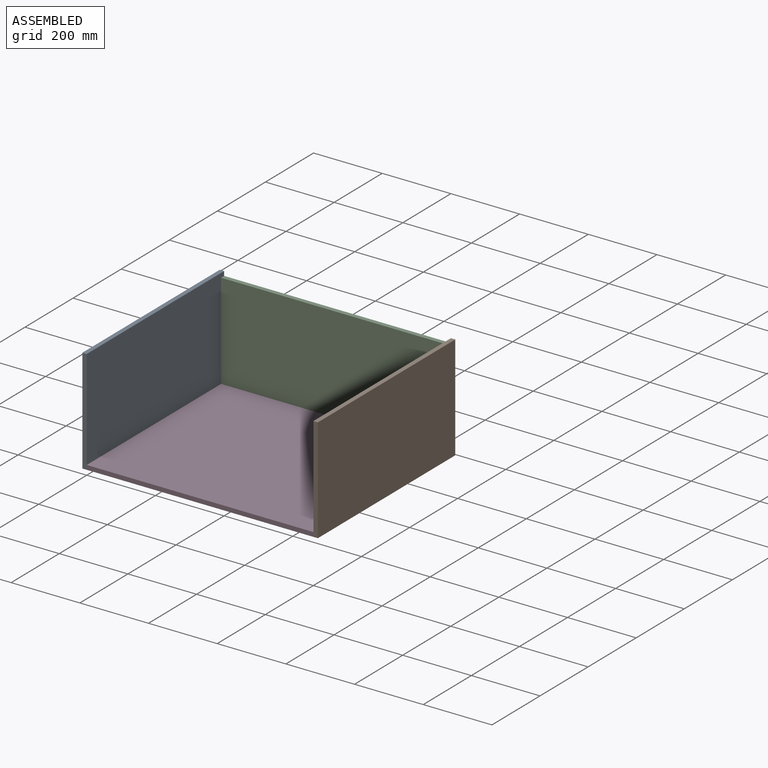
[diagram: assembled view]
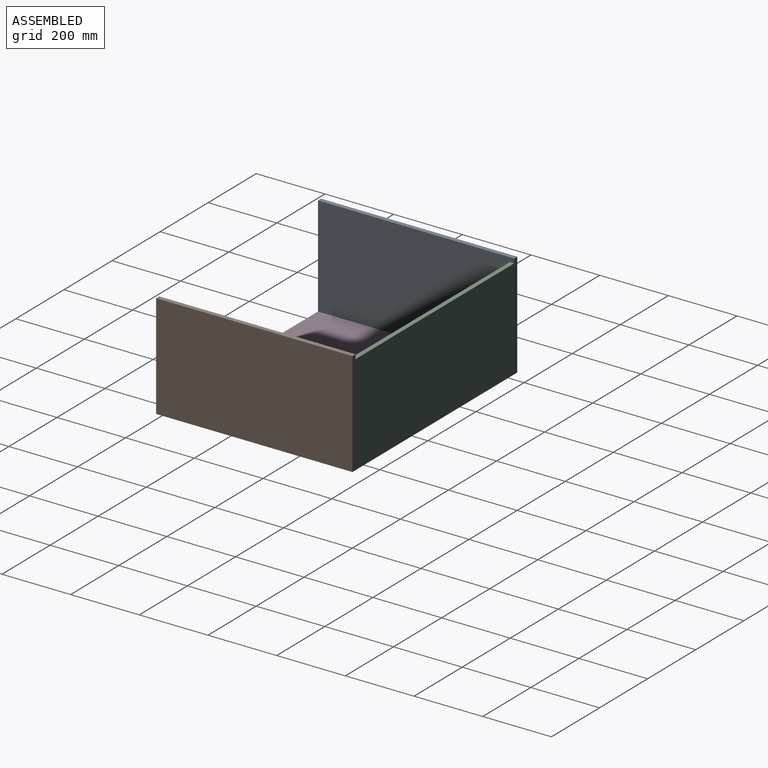
[diagram: assembled view, second angle]
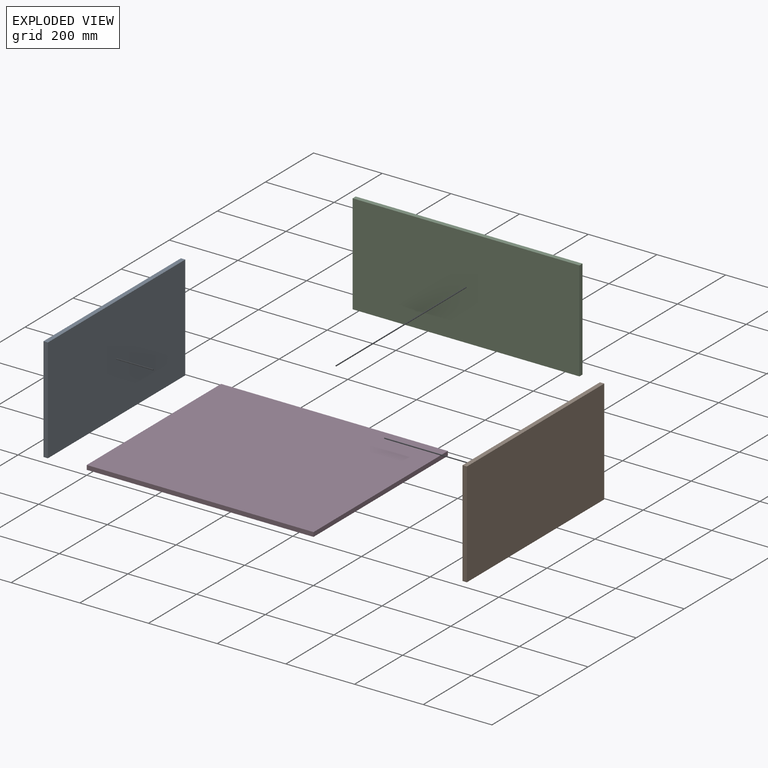
[diagram: exploded view]
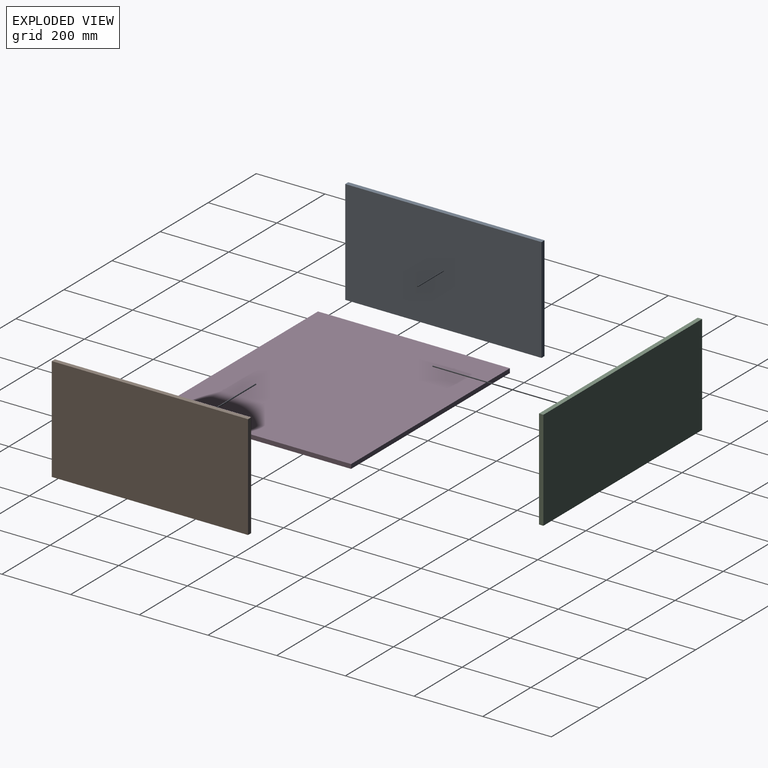
[diagram: exploded view, second angle]
ASSEMBLY  parts=4 mates=3
PART A: 6 faces, bbox 571.5x304.8x12.7 mm
  f0: plane 304.8x12.7mm, normal (-1,0,0), area 3871mm2, adj f1,f3,f4,f5
  f1: plane 571.5x12.7mm, normal (0,-1,0), area 7258mm2, adj f0,f2,f4,f5
  f2: plane 304.8x12.7mm, normal (1,0,0), area 3871mm2, adj f1,f3,f4,f5
  f3: plane 571.5x12.7mm, normal (0,1,0), area 7258.1mm2, adj f0,f2,f4,f5
  f4: plane 571.5x304.8mm, normal (0,0,1), area 174193.2mm2, adj f0,f1,f2,f3
  f5: plane 571.5x304.8mm, normal (0,0,-1), area 174193.2mm2, adj f0,f1,f2,f3
PART B: same geometry as A
PART C: 6 faces, bbox 660.4x292.1x12.7 mm
  f0: plane 292.1x12.7mm, normal (-1,0,0), area 3709.7mm2, adj f1,f3,f4,f5
  f1: plane 660.4x12.7mm, normal (0,-1,0), area 8387.1mm2, adj f0,f2,f4,f5
  f2: plane 292.1x12.7mm, normal (1,0,0), area 3709.7mm2, adj f1,f3,f4,f5
  f3: plane 660.4x12.7mm, normal (0,1,0), area 8387.1mm2, adj f0,f2,f4,f5
  f4: plane 660.4x292.1mm, normal (0,0,1), area 192902.8mm2, adj f0,f1,f2,f3
  f5: plane 660.4x292.1mm, normal (0,0,-1), area 192902.8mm2, adj f0,f1,f2,f3
PART D: 6 faces, bbox 660.4x558.8x12.7 mm
  f0: plane 558.8x12.7mm, normal (-1,0,0), area 7096.8mm2, adj f1,f3,f4,f5
  f1: plane 660.4x12.7mm, normal (0,-1,0), area 8387.1mm2, adj f0,f2,f4,f5
  f2: plane 558.8x12.7mm, normal (1,0,0), area 7096.8mm2, adj f1,f3,f4,f5
  f3: plane 660.4x12.7mm, normal (0,1,0), area 8387.1mm2, adj f0,f2,f4,f5
  f4: plane 660.4x558.8mm, normal (0,0,1), area 369031.5mm2, adj f0,f1,f2,f3
  f5: plane 660.4x558.8mm, normal (0,0,-1), area 369031.5mm2, adj f0,f1,f2,f3
PLACE A rot(axis=(0.58,0.58,0.58),120deg) t=(-12.7,0,0)mm
PLACE B rot(axis=(0.58,-0.58,-0.58),120deg) t=(673.1,571.5,0)mm
PLACE C rot(axis=(1,0,0),90deg) t=(0,571.5,0)mm
PLACE D at identity
MATE fastened B.f4 <-> C.f2  axis (1,0,0) through (660.4,571.5,0)mm
MATE fastened A.f4 <-> C.f0  axis (1,0,0) through (0,571.5,0)mm
MATE fastened C.f4 <-> D.f3  axis (0,-1,0) through (0,558.8,0)mm
